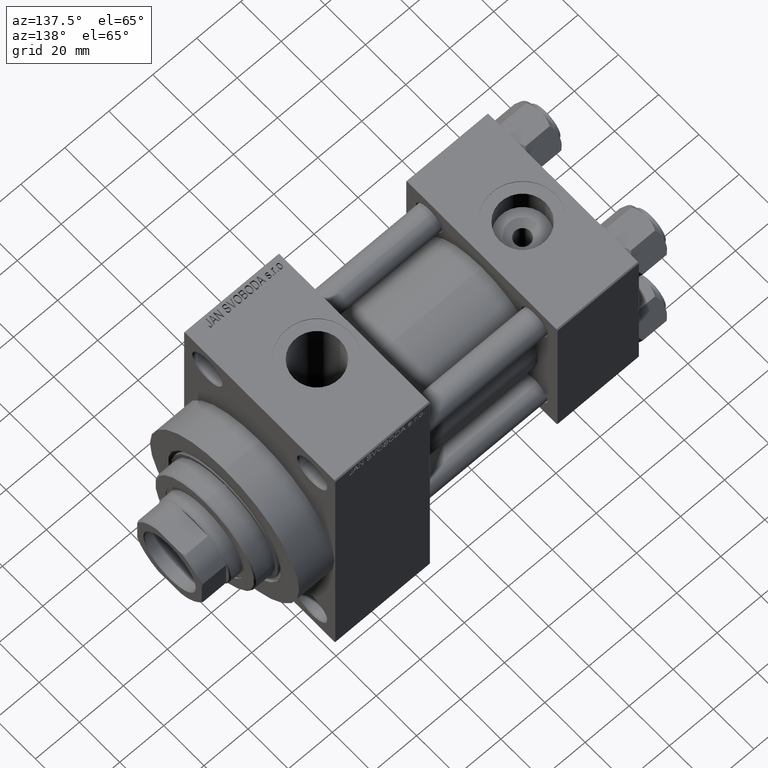
[diagram: clean part render]
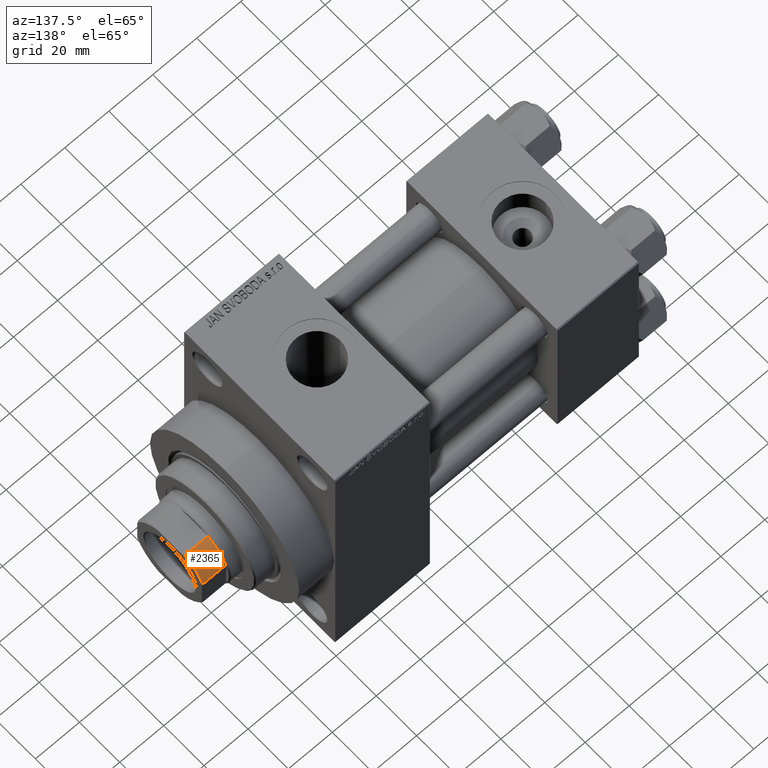
[diagram: same view with one face highlighted and labeled with its STEP entity id]
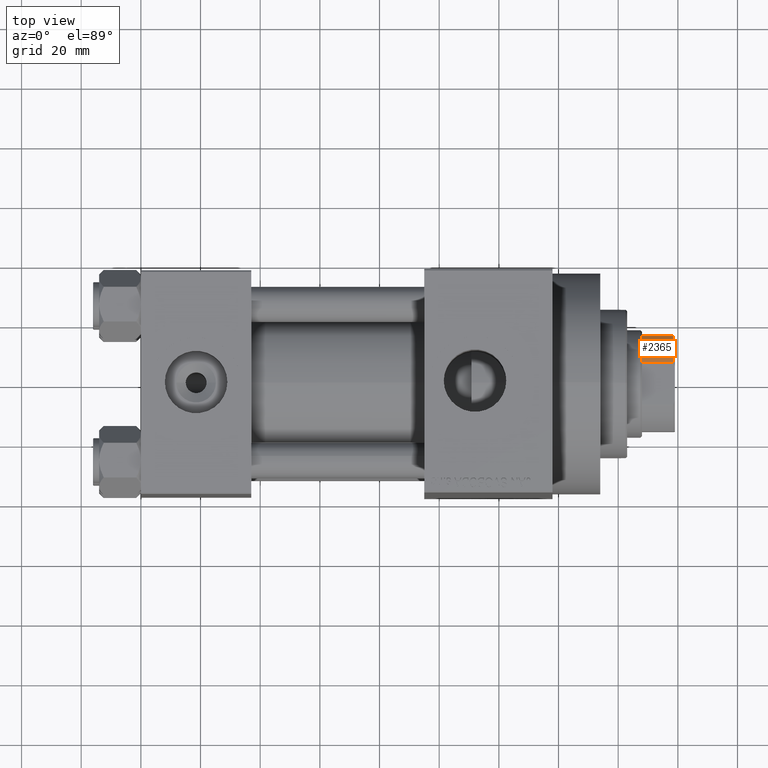
[diagram: same view with one face highlighted and labeled with its STEP entity id]
A machine part, auxiliary view. The second image highlights one B-rep face of the part: STEP entity #2365.
A second angle (top view) of the same face is appended — the face is thin or edge-on in the first view.
In plain terms, the highlighted cylindrical surface (partial cylindrical patch) has radius 17.5 mm, axis along (1, 0, 0).
Its self-contained STEP definition (entity closure, byte-faithful):
#1199 = FACE_OUTER_BOUND ( 'NONE', #43259, .T. ) ;
#1505 = LINE ( 'NONE', #15943, #31647 ) ;
#1812 = ORIENTED_EDGE ( 'NONE', *, *, #35916, .T. ) ;
#2365 = ADVANCED_FACE ( 'NONE', ( #1199 ), #5298, .T. ) ;
#2502 = ORIENTED_EDGE ( 'NONE', *, *, #46817, .T. ) ;
#3547 = CIRCLE ( 'NONE', #20451, 17.50000000000003908 ) ;
#5298 = CYLINDRICAL_SURFACE ( 'NONE', #43563, 17.50000000000000000 ) ;
#6656 = DIRECTION ( 'NONE',  ( 1.000000000000000000, 0.000000000000000000, 0.000000000000000000 ) ) ;
#8850 = ORIENTED_EDGE ( 'NONE', *, *, #23474, .F. ) ;
#10501 = VERTEX_POINT ( 'NONE', #17738 ) ;
#10509 = CARTESIAN_POINT ( 'NONE',  ( -16.00000000000000000, -7.088723439378919799, 131.0000000000000284 ) ) ;
#10828 = DIRECTION ( 'NONE',  ( 1.000000000000000000, 0.000000000000000000, 0.000000000000000000 ) ) ;
#12037 = DIRECTION ( 'NONE',  ( -0.000000000000000000, -0.000000000000000000, 1.000000000000000000 ) ) ;
#15829 = ORIENTED_EDGE ( 'NONE', *, *, #37876, .T. ) ;
#15943 = CARTESIAN_POINT ( 'NONE',  ( -16.00000000000000000, -7.088723439378919799, -0.001000000000001000089 ) ) ;
#16435 = CIRCLE ( 'NONE', #39396, 17.50000000000000000 ) ;
#17738 = CARTESIAN_POINT ( 'NONE',  ( -16.00000000000000000, -7.088723439378919799, 141.5000000000000284 ) ) ;
#20451 = AXIS2_PLACEMENT_3D ( 'NONE', #21290, #24895, #6656 ) ;
#21131 = DIRECTION ( 'NONE',  ( -0.000000000000000000, -0.000000000000000000, -1.000000000000000000 ) ) ;
#21290 = CARTESIAN_POINT ( 'NONE',  ( 0.000000000000000000, 0.000000000000000000, 131.0000000000000000 ) ) ;
#23474 = EDGE_CURVE ( 'NONE', #25007, #10501, #1505, .T. ) ;
#23833 = DIRECTION ( 'NONE',  ( -0.000000000000000000, -0.000000000000000000, 1.000000000000000000 ) ) ;
#24895 = DIRECTION ( 'NONE',  ( 0.000000000000000000, 0.000000000000000000, 1.000000000000000000 ) ) ;
#25007 = VERTEX_POINT ( 'NONE', #10509 ) ;
#31127 = LINE ( 'NONE', #42861, #45527 ) ;
#31647 = VECTOR ( 'NONE', #23833, 1000.000000000000000 ) ;
#33902 = VERTEX_POINT ( 'NONE', #35446 ) ;
#34094 = CARTESIAN_POINT ( 'NONE',  ( 0.000000000000000000, 0.000000000000000000, -0.001000000000001000089 ) ) ;
#34470 = CARTESIAN_POINT ( 'NONE',  ( -7.088723439378915359, -16.00000000000000000, 131.0000000000000284 ) ) ;
#35166 = VERTEX_POINT ( 'NONE', #34470 ) ;
#35446 = CARTESIAN_POINT ( 'NONE',  ( -7.088723439378915359, -16.00000000000000000, 141.5000000000000284 ) ) ;
#35916 = EDGE_CURVE ( 'NONE', #35166, #33902, #31127, .T. ) ;
#37876 = EDGE_CURVE ( 'NONE', #33902, #10501, #16435, .T. ) ;
#39396 = AXIS2_PLACEMENT_3D ( 'NONE', #39624, #21131, #10828 ) ;
#39624 = CARTESIAN_POINT ( 'NONE',  ( 0.000000000000000000, 0.000000000000000000, 141.5000000000000284 ) ) ;
#41549 = DIRECTION ( 'NONE',  ( 1.000000000000000000, 0.000000000000000000, 0.000000000000000000 ) ) ;
#42632 = DIRECTION ( 'NONE',  ( -0.000000000000000000, -0.000000000000000000, 1.000000000000000000 ) ) ;
#42861 = CARTESIAN_POINT ( 'NONE',  ( -7.088723439378915359, -16.00000000000000000, -0.001000000000001000089 ) ) ;
#43259 = EDGE_LOOP ( 'NONE', ( #1812, #15829, #8850, #2502 ) ) ;
#43563 = AXIS2_PLACEMENT_3D ( 'NONE', #34094, #12037, #41549 ) ;
#45527 = VECTOR ( 'NONE', #42632, 1000.000000000000000 ) ;
#46817 = EDGE_CURVE ( 'NONE', #25007, #35166, #3547, .T. ) ;